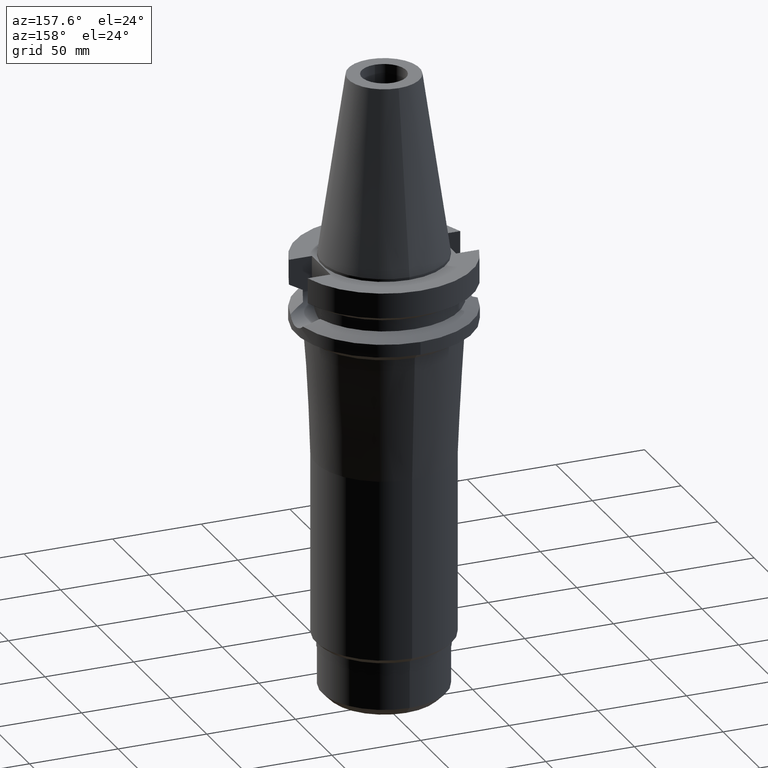
[diagram: clean part render]
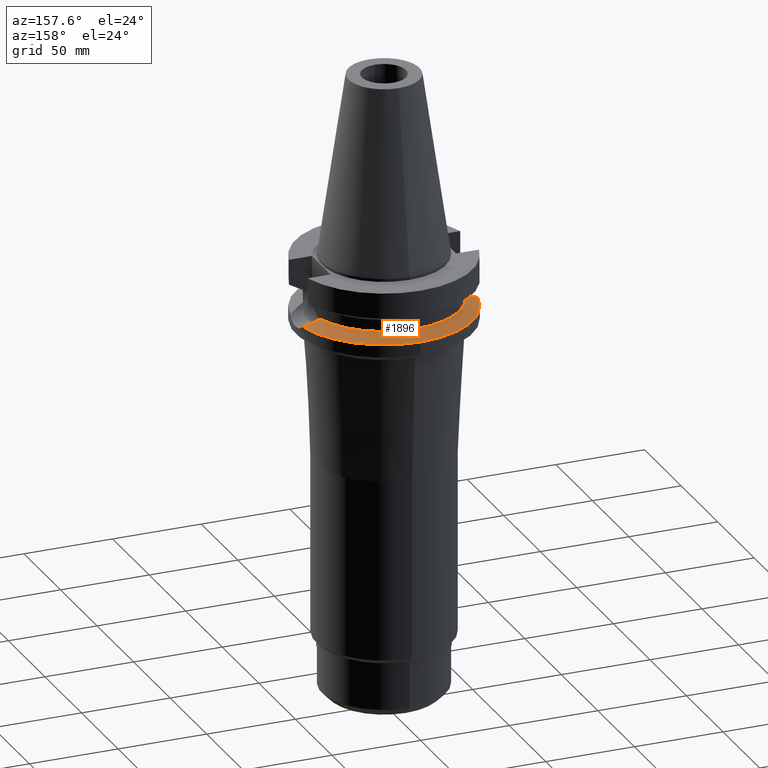
[diagram: same view with one face highlighted and labeled with its STEP entity id]
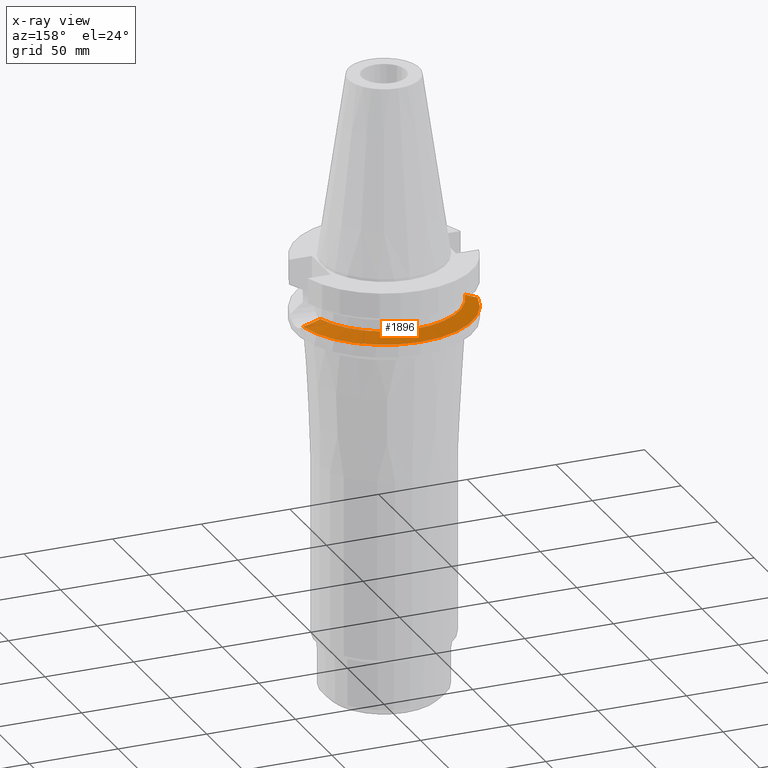
[diagram: x-ray of the same camera — body ghosted, the highlighted face saturated]
A machine part, auxiliary view. The second image highlights one B-rep face of the part: STEP entity #1896.
The next image is the same camera in x-ray: the body ghosted, the highlighted face saturated — about 0% of this face is hidden behind the body in this view.
In plain terms, the highlighted conical surface has half-angle 60 deg.
Its self-contained STEP definition (entity closure, byte-faithful):
#535=CARTESIAN_POINT('',(4.926250064874E1,8.556052234130E0,-3.073730776427E1));
#647=CARTESIAN_POINT('',(-4.085052569294E1,1.172538061688E1,-2.640718074535E1));
#648=CARTESIAN_POINT('',(-4.199125307937E1,1.146047127707E1,-2.699802267922E1));
#649=CARTESIAN_POINT('',(-4.413767336199E1,1.085594569156E1,-2.810621682469E1));
#650=CARTESIAN_POINT('',(-4.692023390266E1,9.787981904947E0,-2.953692372937E1));
#651=CARTESIAN_POINT('',(-4.852650617830E1,8.978414399440E0,-3.036037684300E1));
#652=CARTESIAN_POINT('',(-4.926250064874E1,8.556052234130E0,-3.073730776427E1));
#657=CARTESIAN_POINT('',(0.E0,0.E0,-3.073730776427E1));
#658=DIRECTION('',(0.E0,0.E0,-1.E0));
#659=DIRECTION('',(-9.852500129747E-1,1.711210446826E-1,0.E0));
#660=AXIS2_PLACEMENT_3D('',#657,#658,#659);
#665=CARTESIAN_POINT('',(0.E0,0.E0,-3.073730776427E1));
#666=DIRECTION('',(0.E0,0.E0,-1.E0));
#667=DIRECTION('',(0.E0,1.E0,0.E0));
#668=AXIS2_PLACEMENT_3D('',#665,#666,#667);
#673=CARTESIAN_POINT('',(4.926250064874E1,8.556052234130E0,-3.073730776427E1));
#674=CARTESIAN_POINT('',(4.851082096579E1,8.987415608803E0,-3.035234384569E1));
#675=CARTESIAN_POINT('',(4.688204065693E1,9.804987206493E0,-2.951732106925E1));
#676=CARTESIAN_POINT('',(4.410733536617E1,1.086518928127E1,-2.809057499716E1));
#677=CARTESIAN_POINT('',(4.197813416680E1,1.146351786165E1,-2.699122771333E1));
#678=CARTESIAN_POINT('',(4.085052569294E1,1.172538061688E1,-2.640718074535E1));
#683=CARTESIAN_POINT('',(0.E0,0.E0,-2.640718074535E1));
#684=DIRECTION('',(0.E0,0.E0,1.E0));
#685=DIRECTION('',(9.611888398338E-1,2.758913086325E-1,0.E0));
#686=AXIS2_PLACEMENT_3D('',#683,#684,#685);
#691=CARTESIAN_POINT('',(0.E0,0.E0,-2.640718074535E1));
#692=DIRECTION('',(0.E0,0.E0,1.E0));
#693=DIRECTION('',(0.E0,1.E0,0.E0));
#694=AXIS2_PLACEMENT_3D('',#691,#692,#693);
#709=CARTESIAN_POINT('',(4.085052569294E1,1.172538061688E1,-2.640718074535E1));
#1210=VERTEX_POINT('',#535);
#1212=CARTESIAN_POINT('',(0.E0,5.E1,-3.073730776427E1));
#1213=VERTEX_POINT('',#1212);
#1226=VERTEX_POINT('',#709);
#1231=VERTEX_POINT('',#647);
#1232=VERTEX_POINT('',#652);
#1233=CARTESIAN_POINT('',(0.E0,4.25E1,-2.640718074535E1));
#1234=VERTEX_POINT('',#1233);
#1881=CARTESIAN_POINT('',(0.E0,0.E0,-2.857224425481E1));
#1882=DIRECTION('',(0.E0,0.E0,-1.E0));
#1883=DIRECTION('',(0.E0,-1.E0,0.E0));
#1884=AXIS2_PLACEMENT_3D('',#1881,#1882,#1883);
#1885=CONICAL_SURFACE('',#1884,4.625E1,6.E1);
#1886=ORIENTED_EDGE('',*,*,#1849,.T.);
#1887=ORIENTED_EDGE('',*,*,#1876,.T.);
#1888=ORIENTED_EDGE('',*,*,#1785,.T.);
#1889=ORIENTED_EDGE('',*,*,#1818,.T.);
#1891=ORIENTED_EDGE('',*,*,#1890,.T.);
#1893=ORIENTED_EDGE('',*,*,#1892,.T.);
#1894=EDGE_LOOP('',(#1886,#1887,#1888,#1889,#1891,#1893));
#1895=FACE_OUTER_BOUND('',#1894,.F.);
#653=B_SPLINE_CURVE_WITH_KNOTS('',3,(#647,#648,#649,#650,#651,#652),
.UNSPECIFIED.,.F.,.F.,(4,1,1,4),(0.E0,3.333333333333E-1,6.666666666667E-1,1.E0),
.UNSPECIFIED.);
#661=CIRCLE('',#660,5.E1);
#669=CIRCLE('',#668,5.E1);
#679=B_SPLINE_CURVE_WITH_KNOTS('',3,(#673,#674,#675,#676,#677,#678),
.UNSPECIFIED.,.F.,.F.,(4,1,1,4),(0.E0,3.333333333333E-1,6.666666666667E-1,1.E0),
.UNSPECIFIED.);
#687=CIRCLE('',#686,4.25E1);
#695=CIRCLE('',#694,4.25E1);
#1785=EDGE_CURVE('',#1213,#1210,#669,.T.);
#1818=EDGE_CURVE('',#1210,#1226,#679,.T.);
#1849=EDGE_CURVE('',#1231,#1232,#653,.T.);
#1876=EDGE_CURVE('',#1232,#1213,#661,.T.);
#1890=EDGE_CURVE('',#1226,#1234,#687,.T.);
#1892=EDGE_CURVE('',#1234,#1231,#695,.T.);
#1896=ADVANCED_FACE('',(#1895),#1885,.T.);